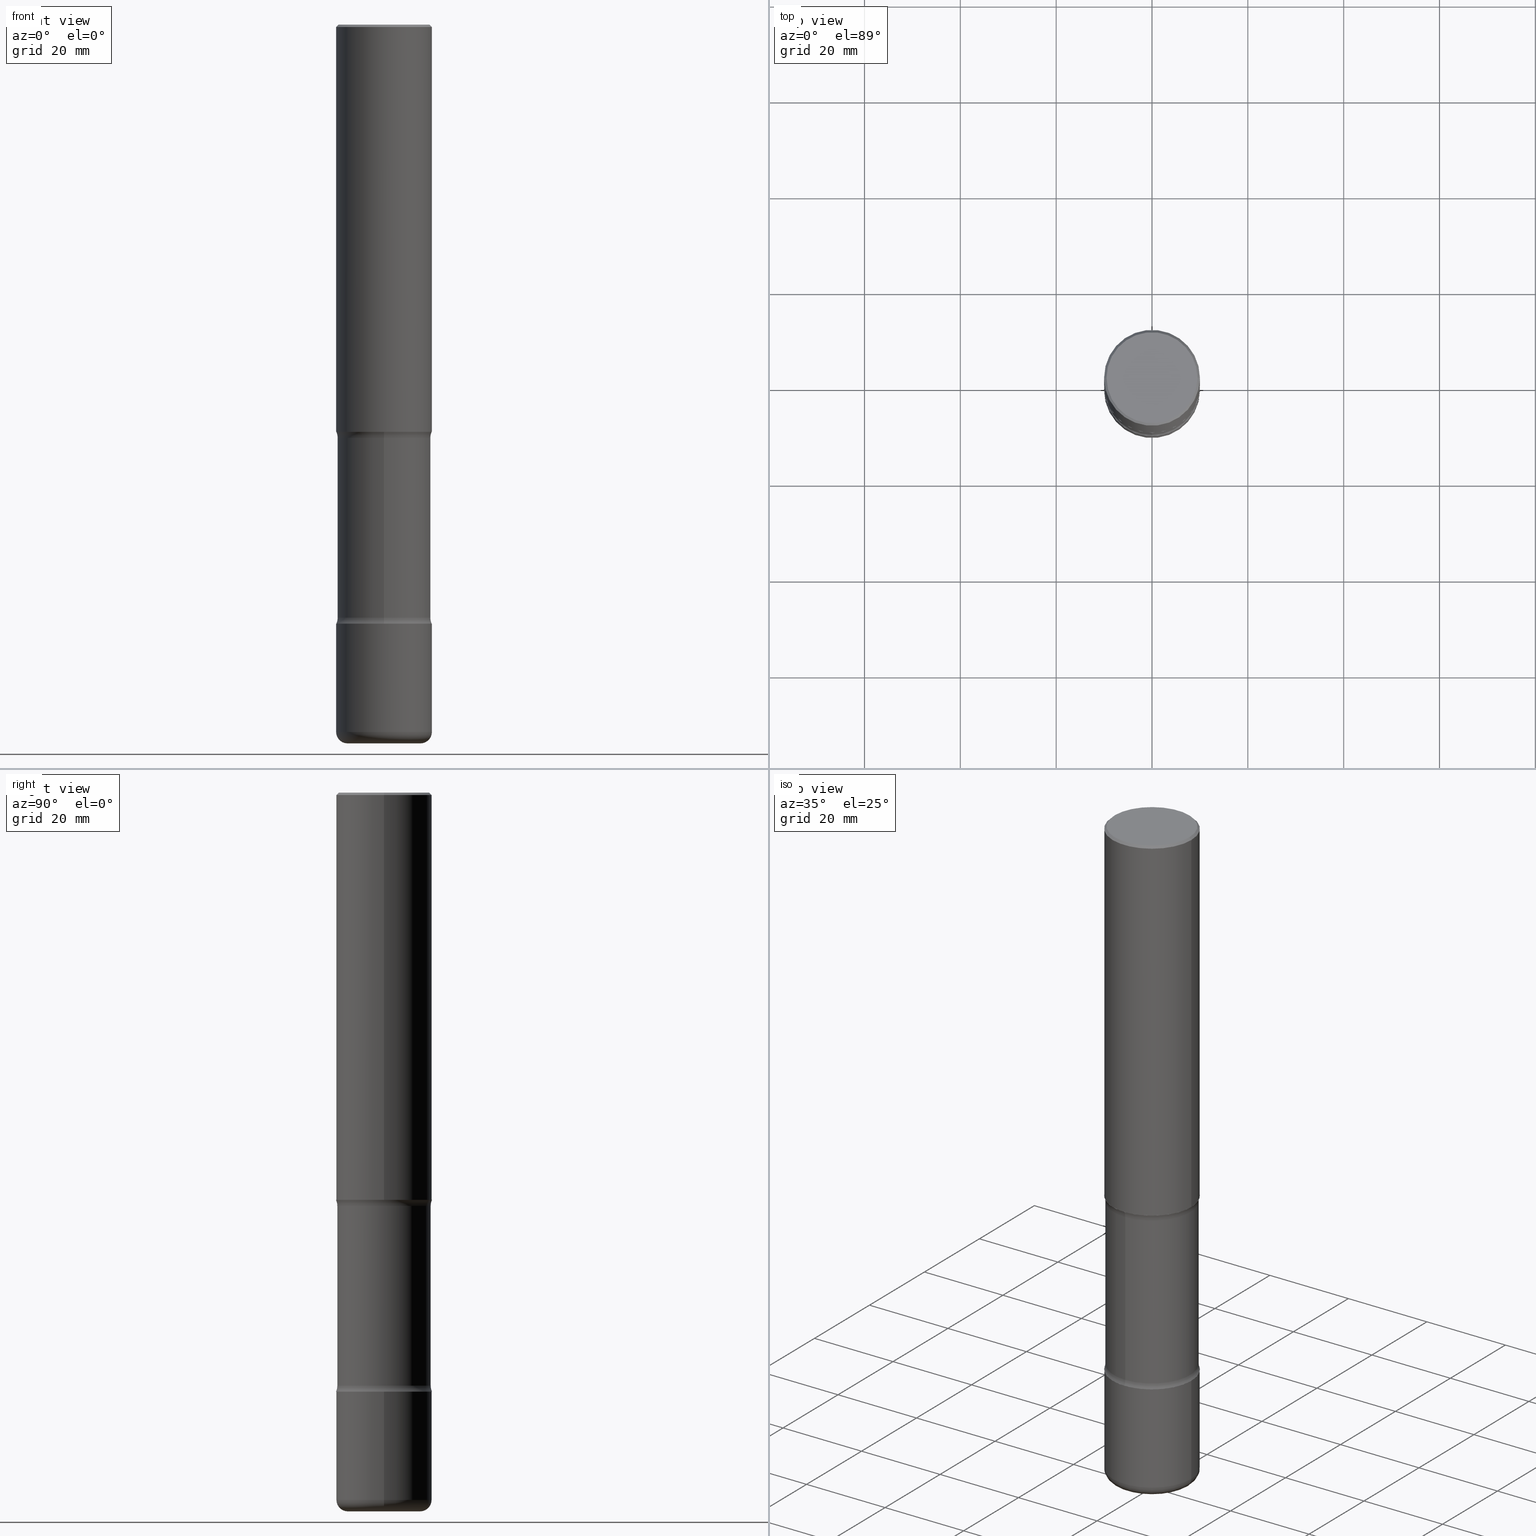
[diagram: canonical four-view strip — front | top / right | iso, engineering-drawing reading convention]
A machine part, canonical four-view strip (front | top / right | iso — engineering-drawing reading convention). The complete STEP part file that produces these views, byte-faithful:
ISO-10303-21;
HEADER;
FILE_DESCRIPTION (( 'STEP AP203' ),
    '1' );
FILE_NAME ('44973.STEP',
    '2024-03-02T04:12:01',
    ( '' ),
    ( '' ),
    'SwSTEP 2.0',
    'SolidWorks 2023',
    '' );
FILE_SCHEMA (( 'CONFIG_CONTROL_DESIGN' ));
ENDSEC;

DATA;
#1 = AXIS2_PLACEMENT_3D ( 'NONE', #275, #523, #135 ) ;
#2 = AXIS2_PLACEMENT_3D ( 'NONE', #64, #502, #440 ) ;
#3 =( GEOMETRIC_REPRESENTATION_CONTEXT ( 3 ) GLOBAL_UNCERTAINTY_ASSIGNED_CONTEXT ( ( #393 ) ) GLOBAL_UNIT_ASSIGNED_CONTEXT ( ( #121, #168, #201 ) ) REPRESENTATION_CONTEXT ( 'NONE', 'WORKASPACE' ) );
#4 = PERSON_AND_ORGANIZATION ( #183, #44 ) ;
#5 = PERSON_AND_ORGANIZATION_ROLE ( 'creator' ) ;
#6 = APPROVAL_STATUS ( 'not_yet_approved' ) ;
#7 = CARTESIAN_POINT ( 'NONE',  ( -0.3937000000000002164, 2.797406750687515970E-15, -1.936584745033357576E-29 ) ) ;
#8 = APPROVAL_ROLE ( '' ) ;
#9 = ORIENTED_EDGE ( 'NONE', *, *, #372, .F. ) ;
#10 = DIRECTION ( 'NONE',  ( -2.445468806185136597E-29, 3.491481338843145583E-15, 1.000000000000000000 ) ) ;
#11 = CIRCLE ( 'NONE', #1, 0.3937000000000002720 ) ;
#12 = AXIS2_PLACEMENT_3D ( 'NONE', #205, #198, #422 ) ;
#13 = AXIS2_PLACEMENT_3D ( 'NONE', #532, #144, #237 ) ;
#14 = PERSON_AND_ORGANIZATION ( #183, #44 ) ;
#15 = DIRECTION ( 'NONE',  ( -6.982962677686265922E-15, -1.000000000000000000, 3.357854558070983727E-15 ) ) ;
#16 = EDGE_CURVE ( 'NONE', #283, #477, #11, .T. ) ;
#17 = DIRECTION ( 'NONE',  ( -2.445468806185136597E-29, 3.491481338843145583E-15, 1.000000000000000000 ) ) ;
#18 = ORIENTED_EDGE ( 'NONE', *, *, #89, .T. ) ;
#19 = VERTEX_POINT ( 'NONE', #378 ) ;
#20 = DIRECTION ( 'NONE',  ( -2.445468806185136597E-29, 3.491481338843145583E-15, 1.000000000000000000 ) ) ;
#21 = ORIENTED_EDGE ( 'NONE', *, *, #490, .F. ) ;
#22 = DIRECTION ( 'NONE',  ( 6.982962677686265133E-15, 1.000000000000000000, -2.775563112689113934E-15 ) ) ;
#23 = AXIS2_PLACEMENT_3D ( 'NONE', #486, #284, #423 ) ;
#24 = CARTESIAN_POINT ( 'NONE',  ( 0.3937000000000001609, -1.993147037091997467E-14, -4.921200000000000685 ) ) ;
#25 = AXIS2_PLACEMENT_3D ( 'NONE', #353, #163, #309 ) ;
#26 = LOCAL_TIME ( 23, 12, 1.000000000000000000, #327 ) ;
#27 = ADVANCED_FACE ( 'NONE', ( #145 ), #290, .T. ) ;
#28 = CC_DESIGN_APPROVAL ( #214, ( #80 ) ) ;
#29 = DIRECTION ( 'NONE',  ( 2.538779888472273425E-29, -3.357854558070984121E-15, -1.000000000000000000 ) ) ;
#30 = CARTESIAN_POINT ( 'NONE',  ( -2.087702828670439639E-46, 2.980686340760894400E-32, 8.537024980200822558E-18 ) ) ;
#31 = CARTESIAN_POINT ( 'NONE',  ( 8.161388557827687771E-29, -1.206145871429503405E-14, -3.395856647682592211 ) ) ;
#32 = CARTESIAN_POINT ( 'NONE',  ( 1.191369639983202937E-28, -1.700960100224938082E-14, -4.871743352317408515 ) ) ;
#33 = FACE_OUTER_BOUND ( 'NONE', #170, .T. ) ;
#34 = CARTESIAN_POINT ( 'NONE',  ( 0.2992000000000003546, -2.270824547970193579E-14, -5.905500000000001748 ) ) ;
#35 = AXIS2_PLACEMENT_3D ( 'NONE', #331, #253, #99 ) ;
#36 = DIRECTION ( 'NONE',  ( -2.445468806185136597E-29, 3.491481338843145583E-15, 1.000000000000000000 ) ) ;
#37 = CARTESIAN_POINT ( 'NONE',  ( -0.3937000000000001054, 2.797406750687515181E-15, -1.936584745033357016E-29 ) ) ;
#38 = PERSON_AND_ORGANIZATION ( #183, #44 ) ;
#39 = VERTEX_POINT ( 'NONE', #533 ) ;
#40 = DIRECTION ( 'NONE',  ( 2.538779888472273425E-29, -3.357854558070984121E-15, -1.000000000000000000 ) ) ;
#41 = MANIFOLD_SOLID_BREP ( 'Body-Move/Copy2[2]', #224 ) ;
#42 = ORIENTED_EDGE ( 'NONE', *, *, #148, .F. ) ;
#43 = AXIS2_PLACEMENT_3D ( 'NONE', #387, #547, #311 ) ;
#44 = ORGANIZATION ( 'UNSPECIFIED', 'UNSPECIFIED', '' ) ;
#45 = FACE_OUTER_BOUND ( 'NONE', #534, .T. ) ;
#46 = ORIENTED_EDGE ( 'NONE', *, *, #190, .F. ) ;
#47 = ORIENTED_EDGE ( 'NONE', *, *, #89, .F. ) ;
#48 = ORIENTED_EDGE ( 'NONE', *, *, #16, .F. ) ;
#49 = EDGE_CURVE ( 'NONE', #527, #19, #455, .T. ) ;
#50 = EDGE_LOOP ( 'NONE', ( #93, #277, #233, #134 ) ) ;
#51 = AXIS2_PLACEMENT_3D ( 'NONE', #298, #40, #206 ) ;
#52 = CC_DESIGN_SECURITY_CLASSIFICATION ( #348, ( #80 ) ) ;
#53 = DIRECTION ( 'NONE',  ( 2.538779888472273425E-29, -3.357854558070984121E-15, -1.000000000000000000 ) ) ;
#54 = EDGE_CURVE ( 'NONE', #383, #520, #234, .T. ) ;
#55 = ORIENTED_EDGE ( 'NONE', *, *, #296, .F. ) ;
#56 = DIRECTION ( 'NONE',  ( 2.438088387897960049E-29, -3.491481338843145188E-15, -1.000000000000000000 ) ) ;
#57 = EDGE_LOOP ( 'NONE', ( #459, #174, #472, #411 ) ) ;
#58 = DIRECTION ( 'NONE',  ( -6.982962677686266711E-15, -1.000000000000000000, 3.491481338843145583E-15 ) ) ;
#59 = PLANE ( 'NONE',  #425 ) ;
#60 = AXIS2_PLACEMENT_3D ( 'NONE', #155, #267, #300 ) ;
#61 = ORIENTED_EDGE ( 'NONE', *, *, #115, .F. ) ;
#62 = CARTESIAN_POINT ( 'NONE',  ( 0.000000000000000000, 0.000000000000000000, 0.000000000000000000 ) ) ;
#63 = ORIENTED_EDGE ( 'NONE', *, *, #123, .T. ) ;
#64 = CARTESIAN_POINT ( 'NONE',  ( -6.191979204648126414E-30, -4.218702904464554477E-14, -5.905500000000000860 ) ) ;
#65 = PLANE ( 'NONE',  #478 ) ;
#66 = SECURITY_CLASSIFICATION_LEVEL ( 'unclassified' ) ;
#67 = CARTESIAN_POINT ( 'NONE',  ( 2.749192406205204307E-15, 0.3936999999999828970, -4.921200000000001573 ) ) ;
#68 = DIRECTION ( 'NONE',  ( -2.445468806185136597E-29, 3.491481338843145583E-15, 1.000000000000000000 ) ) ;
#69 = AXIS2_PLACEMENT_3D ( 'NONE', #525, #53, #324 ) ;
#70 = ORIENTED_EDGE ( 'NONE', *, *, #142, .T. ) ;
#71 = DIRECTION ( 'NONE',  ( 1.000000000000000000, -6.860497997771530774E-15, 4.842435335717673122E-29 ) ) ;
#72 = CYLINDRICAL_SURFACE ( 'NONE', #187, 0.3937000000000002164 ) ;
#73 = PRODUCT ( '44973', '44973', '', ( #149 ) ) ;
#74 = DIRECTION ( 'NONE',  ( 1.000000000000000000, 0.000000000000000000, 0.000000000000000000 ) ) ;
#75 = PERSON_AND_ORGANIZATION_ROLE ( 'classification_officer' ) ;
#76 = ADVANCED_FACE ( 'NONE', ( #498 ), #59, .F. ) ;
#77 = CARTESIAN_POINT ( 'NONE',  ( 3.550836521603549279E-15, 0.5084999999999880727, -3.395856647682593987 ) ) ;
#78 = DIRECTION ( 'NONE',  ( 6.982962677686265133E-15, 1.000000000000000000, -3.357854558070984121E-15 ) ) ;
#79 = AXIS2_PLACEMENT_3D ( 'NONE', #141, #100, #193 ) ;
#80 = PRODUCT_DEFINITION_FORMATION_WITH_SPECIFIED_SOURCE ( 'ANY', '', #73, .NOT_KNOWN. ) ;
#81 = ORIENTED_EDGE ( 'NONE', *, *, #385, .T. ) ;
#82 = DIRECTION ( 'NONE',  ( 6.860497997771527618E-15, 1.000000000000000000, 0.000000000000000000 ) ) ;
#83 = DIRECTION ( 'NONE',  ( 1.000000000000000000, -6.982962677686266711E-15, 0.000000000000000000 ) ) ;
#84 = DATE_AND_TIME ( #90, #474 ) ;
#85 = ORIENTED_EDGE ( 'NONE', *, *, #257, .T. ) ;
#86 = TOROIDAL_SURFACE ( 'NONE', #285, 0.2992000000000003546, 0.09449999999999986189 ) ;
#87 = ORIENTED_EDGE ( 'NONE', *, *, #238, .F. ) ;
#88 = ORIENTED_EDGE ( 'NONE', *, *, #142, .F. ) ;
#89 = EDGE_CURVE ( 'NONE', #437, #231, #557, .T. ) ;
#90 = CALENDAR_DATE ( 2024, 1, 3 ) ;
#91 = PLANE ( 'NONE',  #381 ) ;
#92 = APPROVAL ( #6, 'UNSPECIFIED' ) ;
#93 = ORIENTED_EDGE ( 'NONE', *, *, #173, .F. ) ;
#94 = EDGE_CURVE ( 'NONE', #231, #437, #388, .T. ) ;
#95 = AXIS2_PLACEMENT_3D ( 'NONE', #160, #110, #339 ) ;
#96 = AXIS2_PLACEMENT_3D ( 'NONE', #225, #416, #74 ) ;
#97 = ORIENTED_EDGE ( 'NONE', *, *, #508, .T. ) ;
#98 = PLANE ( 'NONE',  #419 ) ;
#99 = DIRECTION ( 'NONE',  ( 6.982962677686265922E-15, 1.000000000000000000, -2.775563112689115512E-15 ) ) ;
#100 = DIRECTION ( 'NONE',  ( 2.538779888472273425E-29, -3.357854558070984121E-15, -1.000000000000000000 ) ) ;
#101 = CONICAL_SURFACE ( 'NONE', #13, 0.3936999999999999389, 0.7853981633974473908 ) ;
#102 = ADVANCED_FACE ( 'NONE', ( #540 ), #150, .T. ) ;
#103 = PLANE ( 'NONE',  #2 ) ;
#104 = CARTESIAN_POINT ( 'NONE',  ( 1.203464108899829604E-28, -1.718227796471488830E-14, -4.921200000000000685 ) ) ;
#105 = CARTESIAN_POINT ( 'NONE',  ( -2.700978061722573549E-15, -0.3937000000000122624, -3.346399999999999153 ) ) ;
#106 = CARTESIAN_POINT ( 'NONE',  ( 0.2992000000000003546, -2.237830049318126136E-14, -5.811000000000001720 ) ) ;
#107 = PERSON_AND_ORGANIZATION ( #183, #44 ) ;
#108 = DIRECTION ( 'NONE',  ( 1.000000000000000000, -6.982962677686266711E-15, 4.876176775795935793E-29 ) ) ;
#109 = ORIENTED_EDGE ( 'NONE', *, *, #291, .F. ) ;
#110 = DIRECTION ( 'NONE',  ( -2.445468806185136597E-29, 3.491481338843145583E-15, 1.000000000000000000 ) ) ;
#111 = DIRECTION ( 'NONE',  ( 1.000000000000000000, -6.982962677686266711E-15, 4.876212485538976239E-29 ) ) ;
#112 = AXIS2_PLACEMENT_3D ( 'NONE', #30, #531, #200 ) ;
#113 =( LENGTH_UNIT ( ) NAMED_UNIT ( * ) SI_UNIT ( $, .METRE. ) );
#114 = DIRECTION ( 'NONE',  ( -6.982962677686264344E-15, -1.000000000000000000, 0.000000000000000000 ) ) ;
#115 = EDGE_CURVE ( 'NONE', #405, #527, #166, .T. ) ;
#116 = DIRECTION ( 'NONE',  ( 1.000000000000000000, -6.982962677686266711E-15, 0.000000000000000000 ) ) ;
#117 = DIRECTION ( 'NONE',  ( -1.000000000000000000, 6.982962677686265922E-15, -4.876176775795935793E-29 ) ) ;
#118 = CARTESIAN_POINT ( 'NONE',  ( 0.3937000000000002164, -2.303819046622261022E-14, -5.811000000000001720 ) ) ;
#119 = AXIS2_PLACEMENT_3D ( 'NONE', #204, #169, #466 ) ;
#120 = APPROVAL_PERSON_ORGANIZATION ( #4, #92, #182 ) ;
#121 =( CONVERSION_BASED_UNIT ( 'INCH', #434 ) LENGTH_UNIT ( ) NAMED_UNIT ( #217 ) );
#122 = DIRECTION ( 'NONE',  ( -2.445468806185136597E-29, 3.491481338843145583E-15, 1.000000000000000000 ) ) ;
#123 = EDGE_CURVE ( 'NONE', #320, #530, #335, .T. ) ;
#124 = DIRECTION ( 'NONE',  ( 2.538779888472273425E-29, -3.357854558070984121E-15, -1.000000000000000000 ) ) ;
#125 = ORIENTED_EDGE ( 'NONE', *, *, #385, .F. ) ;
#126 = APPROVAL_DATE_TIME ( #84, #392 ) ;
#127 = ADVANCED_FACE ( 'NONE', ( #33 ), #65, .F. ) ;
#128 = AXIS2_PLACEMENT_3D ( 'NONE', #32, #552, #491 ) ;
#129 = ORIENTED_EDGE ( 'NONE', *, *, #158, .F. ) ;
#130 = EDGE_LOOP ( 'NONE', ( #361, #199, #48, #262 ) ) ;
#131 = EDGE_CURVE ( 'NONE', #39, #477, #418, .T. ) ;
#132 = ORIENTED_EDGE ( 'NONE', *, *, #264, .T. ) ;
#133 = DIRECTION ( 'NONE',  ( -2.538779888472273425E-29, 3.357854558070983727E-15, 1.000000000000000000 ) ) ;
#134 = ORIENTED_EDGE ( 'NONE', *, *, #202, .T. ) ;
#135 = DIRECTION ( 'NONE',  ( 1.000000000000000000, -6.982962677686263555E-15, 0.000000000000000000 ) ) ;
#136 = CARTESIAN_POINT ( 'NONE',  ( -2.700978061722531345E-15, -0.3937000000000173139, -4.921199999999999797 ) ) ;
#137 = ORIENTED_EDGE ( 'NONE', *, *, #164, .F. ) ;
#138 = CIRCLE ( 'NONE', #480, 0.1250000000000001110 ) ;
#139 = ORIENTED_EDGE ( 'NONE', *, *, #49, .T. ) ;
#140 = DIRECTION ( 'NONE',  ( 1.000000000000000000, -6.982962677686266711E-15, 0.000000000000000000 ) ) ;
#141 = CARTESIAN_POINT ( 'NONE',  ( 1.190908154651047396E-28, -1.701620973486698988E-14, -4.871743352317408515 ) ) ;
#142 = EDGE_CURVE ( 'NONE', #292, #19, #207, .T. ) ;
#143 = APPLICATION_CONTEXT ( 'configuration controlled 3d designs of mechanical parts and assemblies' ) ;
#144 = DIRECTION ( 'NONE',  ( 2.445468806185136597E-29, -3.491481338843145583E-15, -1.000000000000000000 ) ) ;
#145 = FACE_OUTER_BOUND ( 'NONE', #542, .T. ) ;
#146 = VECTOR ( 'NONE', #358, 39.37007874015748143 ) ;
#147 = EDGE_LOOP ( 'NONE', ( #220, #443, #511, #519 ) ) ;
#148 = EDGE_CURVE ( 'NONE', #475, #292, #138, .T. ) ;
#149 = MECHANICAL_CONTEXT ( 'NONE', #143, 'mechanical' ) ;
#150 = CYLINDRICAL_SURFACE ( 'NONE', #304, 0.3937000000000001054 ) ;
#151 = FACE_OUTER_BOUND ( 'NONE', #431, .T. ) ;
#152 = EDGE_LOOP ( 'NONE', ( #42, #109, #452, #408 ) ) ;
#153 = DIRECTION ( 'NONE',  ( -2.445468806185136597E-29, 3.491481338843145583E-15, 1.000000000000000000 ) ) ;
#154 = EDGE_CURVE ( 'NONE', #530, #320, #412, .T. ) ;
#155 = CARTESIAN_POINT ( 'NONE',  ( 1.203464108899829604E-28, -1.718227796471488830E-14, -4.921200000000000685 ) ) ;
#156 = CARTESIAN_POINT ( 'NONE',  ( -3.488563231866742935E-15, -0.5085000000000122755, -3.395856647682590435 ) ) ;
#157 = VECTOR ( 'NONE', #340, 39.37007874015748143 ) ;
#158 = EDGE_CURVE ( 'NONE', #39, #219, #249, .T. ) ;
#159 = CIRCLE ( 'NONE', #473, 0.1250000000000001110 ) ;
#160 = CARTESIAN_POINT ( 'NONE',  ( 8.183516813017942119E-29, -1.168389315230470294E-14, -3.346400000000000041 ) ) ;
#161 = DIRECTION ( 'NONE',  ( 0.7071067811865469066, -7.319954787623254468E-15, -0.7071067811865481278 ) ) ;
#162 = DATE_AND_TIME ( #255, #501 ) ;
#163 = DIRECTION ( 'NONE',  ( 2.538779888472273425E-29, -3.357854558070984121E-15, -1.000000000000000000 ) ) ;
#164 = EDGE_CURVE ( 'NONE', #475, #400, #538, .T. ) ;
#165 = CARTESIAN_POINT ( 'NONE',  ( 1.191369639983202937E-28, -1.700960100224938082E-14, -4.871743352317408515 ) ) ;
#166 = CIRCLE ( 'NONE', #23, 0.3835000000000000631 ) ;
#167 = CIRCLE ( 'NONE', #226, 0.1250000000000001110 ) ;
#168 =( NAMED_UNIT ( * ) PLANE_ANGLE_UNIT ( ) SI_UNIT ( $, .RADIAN. ) );
#169 = DIRECTION ( 'NONE',  ( 2.445468806185136597E-29, -3.491481338843145583E-15, -1.000000000000000000 ) ) ;
#170 = EDGE_LOOP ( 'NONE', ( #125, #9 ) ) ;
#171 = CARTESIAN_POINT ( 'NONE',  ( 0.3937000000000001054, -2.749192406205084005E-15, 1.919750796630860452E-29 ) ) ;
#172 = ADVANCED_FACE ( 'NONE', ( #450 ), #240, .T. ) ;
#173 = EDGE_CURVE ( 'NONE', #530, #512, #375, .T. ) ;
#174 = ORIENTED_EDGE ( 'NONE', *, *, #173, .T. ) ;
#175 = AXIS2_PLACEMENT_3D ( 'NONE', #287, #417, #22 ) ;
#176 = CIRCLE ( 'NONE', #488, 0.3937000000000001609 ) ;
#177 = CIRCLE ( 'NONE', #227, 0.09449999999999987577 ) ;
#178 = ORIENTED_EDGE ( 'NONE', *, *, #221, .F. ) ;
#179 = CARTESIAN_POINT ( 'NONE',  ( 4.890937612370294178E-31, -6.982962677686321191E-17, -0.02000000000000008715 ) ) ;
#180 = ORIENTED_EDGE ( 'NONE', *, *, #558, .T. ) ;
#181 = ADVANCED_FACE ( 'NONE', ( #266 ), #380, .F. ) ;
#182 = APPROVAL_ROLE ( '' ) ;
#183 = PERSON ( 'UNSPECIFIED', 'UNSPECIFIED', 'UNSPECIFIED', ('UNSPECIFIED'), ('UNSPECIFIED'), ('UNSPECIFIED') ) ;
#184 = DATE_AND_TIME ( #446, #26 ) ;
#185 = EDGE_LOOP ( 'NONE', ( #63, #556 ) ) ;
#186 = VECTOR ( 'NONE', #161, 39.37007874015748143 ) ;
#187 = AXIS2_PLACEMENT_3D ( 'NONE', #493, #342, #299 ) ;
#188 = DIRECTION ( 'NONE',  ( -2.445468806185136597E-29, 3.491481338843145583E-15, 1.000000000000000000 ) ) ;
#189 = DIRECTION ( 'NONE',  ( 1.000000000000000000, -6.982962677686266711E-15, 4.876176775795935793E-29 ) ) ;
#190 = EDGE_CURVE ( 'NONE', #527, #231, #159, .T. ) ;
#191 = ORIENTED_EDGE ( 'NONE', *, *, #261, .F. ) ;
#192 = ORIENTED_EDGE ( 'NONE', *, *, #190, .T. ) ;
#193 = DIRECTION ( 'NONE',  ( 6.982962677686265922E-15, 1.000000000000000000, -2.849385130288670661E-15 ) ) ;
#194 = EDGE_LOOP ( 'NONE', ( #81, #132, #274, #470 ) ) ;
#195 = AXIS2_PLACEMENT_3D ( 'NONE', #165, #124, #78 ) ;
#196 = DIRECTION ( 'NONE',  ( 6.982962677686265133E-15, 1.000000000000000000, -2.775563112689113934E-15 ) ) ;
#197 = CIRCLE ( 'NONE', #407, 0.3936999999999999389 ) ;
#198 = DIRECTION ( 'NONE',  ( 2.538779888472273425E-29, -3.357854558070984121E-15, -1.000000000000000000 ) ) ;
#199 = ORIENTED_EDGE ( 'NONE', *, *, #131, .T. ) ;
#200 = DIRECTION ( 'NONE',  ( 1.000000000000000000, -6.982962677686266711E-15, 4.876212485538976239E-29 ) ) ;
#201 =( NAMED_UNIT ( * ) SI_UNIT ( $, .STERADIAN. ) SOLID_ANGLE_UNIT ( ) );
#202 = EDGE_CURVE ( 'NONE', #376, #512, #197, .T. ) ;
#203 = CARTESIAN_POINT ( 'NONE',  ( -2.665989521933937322E-15, -0.3835000000000121645, -3.395856647682591323 ) ) ;
#204 = CARTESIAN_POINT ( 'NONE',  ( 4.890937612370294178E-31, -6.982962677686321191E-17, -0.02000000000000008715 ) ) ;
#205 = CARTESIAN_POINT ( 'NONE',  ( 8.161388557827687771E-29, -1.206145871429503405E-14, -3.395856647682592211 ) ) ;
#206 = DIRECTION ( 'NONE',  ( 6.982962677686265922E-15, 1.000000000000000000, -2.849385130288670267E-15 ) ) ;
#207 = CIRCLE ( 'NONE', #79, 0.3835000000000000075 ) ;
#208 = CC_DESIGN_PERSON_AND_ORGANIZATION_ASSIGNMENT ( #362, #75, ( #348 ) ) ;
#209 = DIRECTION ( 'NONE',  ( 1.000000000000000000, -6.982962677686264344E-15, 4.883557194083112340E-29 ) ) ;
#210 = ADVANCED_FACE ( 'NONE', ( #211 ), #507, .T. ) ;
#211 = FACE_OUTER_BOUND ( 'NONE', #57, .T. ) ;
#212 = PRODUCT_DEFINITION ( 'UNKNOWN', '', #80, #432 ) ;
#213 = DIRECTION ( 'NONE',  ( -2.445468806185136597E-29, 3.491481338843145583E-15, 1.000000000000000000 ) ) ;
#214 = APPROVAL ( #409, 'UNSPECIFIED' ) ;
#215 = DIRECTION ( 'NONE',  ( 6.982962677686265922E-15, 1.000000000000000000, -2.849385130288670661E-15 ) ) ;
#216 = ORIENTED_EDGE ( 'NONE', *, *, #558, .F. ) ;
#217 = DIMENSIONAL_EXPONENTS ( 1.000000000000000000, 0.000000000000000000, 0.000000000000000000, 0.000000000000000000, 0.000000000000000000, 0.000000000000000000, 0.000000000000000000 ) ;
#218 = CARTESIAN_POINT ( 'NONE',  ( -0.3937000000000002720, -3.079454638853263992E-15, -3.346400000000000041 ) ) ;
#219 = VERTEX_POINT ( 'NONE', #34 ) ;
#220 = ORIENTED_EDGE ( 'NONE', *, *, #264, .F. ) ;
#221 = EDGE_CURVE ( 'NONE', #19, #292, #549, .T. ) ;
#222 = CARTESIAN_POINT ( 'NONE',  ( -0.3937000000000002164, -1.749159130933001301E-14, -5.811000000000001720 ) ) ;
#223 = VERTEX_POINT ( 'NONE', #260 ) ;
#224 = CLOSED_SHELL ( 'NONE', ( #172, #210, #517, #454, #127, #102 ) ) ;
#225 = CARTESIAN_POINT ( 'NONE',  ( 0.000000000000000000, 0.000000000000000000, 0.000000000000000000 ) ) ;
#226 = AXIS2_PLACEMENT_3D ( 'NONE', #232, #367, #374 ) ;
#227 = AXIS2_PLACEMENT_3D ( 'NONE', #106, #58, #330 ) ;
#228 = EDGE_CURVE ( 'NONE', #527, #405, #346, .T. ) ;
#229 = MANIFOLD_SOLID_BREP ( 'Body-Move/Copy2[4]', #464 ) ;
#230 = CYLINDRICAL_SURFACE ( 'NONE', #69, 0.3835000000000000075 ) ;
#231 = VERTEX_POINT ( 'NONE', #510 ) ;
#232 = CARTESIAN_POINT ( 'NONE',  ( 3.550836521603587144E-15, 0.5084999999999831877, -4.871743352317410292 ) ) ;
#233 = ORIENTED_EDGE ( 'NONE', *, *, #301, .T. ) ;
#234 = CIRCLE ( 'NONE', #506, 0.3937000000000001609 ) ;
#235 = PERSON_AND_ORGANIZATION_ROLE ( 'design_supplier' ) ;
#236 = AXIS2_PLACEMENT_3D ( 'NONE', #394, #424, #303 ) ;
#237 = DIRECTION ( 'NONE',  ( -1.000000000000000000, 6.982962677686266711E-15, 0.000000000000000000 ) ) ;
#238 = EDGE_CURVE ( 'NONE', #219, #39, #305, .T. ) ;
#239 = VECTOR ( 'NONE', #544, 39.37007874015748143 ) ;
#240 = CYLINDRICAL_SURFACE ( 'NONE', #442, 0.3937000000000001054 ) ;
#241 = ORIENTED_EDGE ( 'NONE', *, *, #49, .F. ) ;
#242 = ORIENTED_EDGE ( 'NONE', *, *, #158, .T. ) ;
#243 = ADVANCED_FACE ( 'NONE', ( #302 ), #513, .T. ) ;
#244 = DIRECTION ( 'NONE',  ( -2.438088387897960049E-29, 3.491481338843145188E-15, 1.000000000000000000 ) ) ;
#245 = CC_DESIGN_PERSON_AND_ORGANIZATION_ASSIGNMENT ( #483, #345, ( #80 ) ) ;
#246 = FACE_OUTER_BOUND ( 'NONE', #50, .T. ) ;
#247 = CARTESIAN_POINT ( 'NONE',  ( -0.2992000000000003546, -1.816305419462330473E-14, -5.811000000000001720 ) ) ;
#248 = AXIS2_PLACEMENT_3D ( 'NONE', #247, #344, #250 ) ;
#249 = CIRCLE ( 'NONE', #399, 0.2992000000000003546 ) ;
#250 = DIRECTION ( 'NONE',  ( -1.000000000000000000, 7.105427357600993181E-15, 0.000000000000000000 ) ) ;
#251 = APPROVAL_PERSON_ORGANIZATION ( #541, #214, #8 ) ;
#252 = ORIENTED_EDGE ( 'NONE', *, *, #296, .T. ) ;
#253 = DIRECTION ( 'NONE',  ( 2.538779888472273425E-29, -3.357854558070984121E-15, -1.000000000000000000 ) ) ;
#254 = CARTESIAN_POINT ( 'NONE',  ( 1.444171603492632719E-28, -2.061894304653820143E-14, -5.905500000000001748 ) ) ;
#255 = CALENDAR_DATE ( 2024, 1, 3 ) ;
#256 = DIRECTION ( 'NONE',  ( -2.445468806185136877E-29, 3.491481338843145188E-15, 1.000000000000000000 ) ) ;
#257 = EDGE_CURVE ( 'NONE', #405, #292, #428, .T. ) ;
#258 = CIRCLE ( 'NONE', #354, 0.3937000000000002164 ) ;
#259 = APPROVAL_DATE_TIME ( #162, #214 ) ;
#260 = CARTESIAN_POINT ( 'NONE',  ( 0.3937000000000002164, -1.443308555850978615E-14, -3.346400000000000041 ) ) ;
#261 = EDGE_CURVE ( 'NONE', #477, #283, #280, .T. ) ;
#262 = ORIENTED_EDGE ( 'NONE', *, *, #508, .F. ) ;
#263 = CARTESIAN_POINT ( 'NONE',  ( -0.3936999999999999389, 2.679362779428219524E-15, -0.02000000000000008715 ) ) ;
#264 = EDGE_CURVE ( 'NONE', #316, #376, #390, .T. ) ;
#265 = EDGE_LOOP ( 'NONE', ( #343, #322, #139, #88 ) ) ;
#266 = FACE_OUTER_BOUND ( 'NONE', #152, .T. ) ;
#267 = DIRECTION ( 'NONE',  ( 2.438088387897960049E-29, -3.491481338843145188E-15, -1.000000000000000000 ) ) ;
#268 = AXIS2_PLACEMENT_3D ( 'NONE', #156, #468, #82 ) ;
#269 = CC_DESIGN_APPROVAL ( #392, ( #348 ) ) ;
#270 = ORIENTED_EDGE ( 'NONE', *, *, #291, .T. ) ;
#271 = ADVANCED_FACE ( 'NONE', ( #555 ), #518, .T. ) ;
#272 = CALENDAR_DATE ( 2024, 1, 3 ) ;
#273 = CARTESIAN_POINT ( 'NONE',  ( -0.3936999999999999389, 2.679362779428219524E-15, -0.02000000000000008715 ) ) ;
#274 = ORIENTED_EDGE ( 'NONE', *, *, #430, .F. ) ;
#275 = CARTESIAN_POINT ( 'NONE',  ( 1.421061923274183479E-28, -2.028899806001752700E-14, -5.811000000000001720 ) ) ;
#276 = CARTESIAN_POINT ( 'NONE',  ( 1.203464108899829604E-28, -1.718227796471488830E-14, -4.921200000000000685 ) ) ;
#277 = ORIENTED_EDGE ( 'NONE', *, *, #123, .F. ) ;
#278 = ADVANCED_FACE ( 'NONE', ( #503 ), #86, .T. ) ;
#279 = DIRECTION ( 'NONE',  ( 1.000000000000000000, -6.982962677686265922E-15, 0.000000000000000000 ) ) ;
#280 = CIRCLE ( 'NONE', #43, 0.3937000000000002720 ) ;
#281 = TOROIDAL_SURFACE ( 'NONE', #489, 0.5085000000000001741, 0.1250000000000000555 ) ;
#282 = CC_DESIGN_PERSON_AND_ORGANIZATION_ASSIGNMENT ( #107, #318, ( #73 ) ) ;
#283 = VERTEX_POINT ( 'NONE', #118 ) ;
#284 = DIRECTION ( 'NONE',  ( 2.538779888472273425E-29, -3.357854558070984121E-15, -1.000000000000000000 ) ) ;
#285 = AXIS2_PLACEMENT_3D ( 'NONE', #435, #36, #391 ) ;
#286 = EDGE_LOOP ( 'NONE', ( #55, #485, #192, #333 ) ) ;
#287 = CARTESIAN_POINT ( 'NONE',  ( 8.036570520632159222E-29, -1.189432860666470280E-14, -3.346400000000000041 ) ) ;
#288 = EDGE_LOOP ( 'NONE', ( #137, #325, #70, #366 ) ) ;
#289 = DIRECTION ( 'NONE',  ( 6.982962677686265922E-15, 1.000000000000000000, -3.357854558070983727E-15 ) ) ;
#290 = CYLINDRICAL_SURFACE ( 'NONE', #314, 0.3835000000000000075 ) ;
#291 = EDGE_CURVE ( 'NONE', #400, #475, #360, .T. ) ;
#292 = VERTEX_POINT ( 'NONE', #471 ) ;
#293 = VECTOR ( 'NONE', #463, 39.37007874015748143 ) ;
#294 = CARTESIAN_POINT ( 'NONE',  ( 8.183516813017942119E-29, -1.168389315230470294E-14, -3.346400000000000041 ) ) ;
#295 = CALENDAR_DATE ( 2024, 1, 3 ) ;
#296 = EDGE_CURVE ( 'NONE', #405, #437, #426, .T. ) ;
#297 = PERSON_AND_ORGANIZATION ( #183, #44 ) ;
#298 = CARTESIAN_POINT ( 'NONE',  ( 8.162130063119982422E-29, -1.206039683651260596E-14, -3.395856647682592211 ) ) ;
#299 = DIRECTION ( 'NONE',  ( 1.000000000000000000, -6.982962677686266711E-15, 4.876176775795935793E-29 ) ) ;
#300 = DIRECTION ( 'NONE',  ( -1.000000000000000000, 6.982962677686265922E-15, -4.876176775795935793E-29 ) ) ;
#301 = EDGE_CURVE ( 'NONE', #320, #376, #347, .T. ) ;
#302 = FACE_OUTER_BOUND ( 'NONE', #363, .T. ) ;
#303 = DIRECTION ( 'NONE',  ( 1.000000000000000000, -6.982962677686266711E-15, 4.876176775795935793E-29 ) ) ;
#304 = AXIS2_PLACEMENT_3D ( 'NONE', #62, #460, #108 ) ;
#305 = CIRCLE ( 'NONE', #509, 0.2992000000000003546 ) ;
#306 = COORDINATED_UNIVERSAL_TIME_OFFSET ( 5, 0, .BEHIND. ) ;
#307 = LOCAL_TIME ( 23, 12, 1.000000000000000000, #526 ) ;
#308 = ORIENTED_EDGE ( 'NONE', *, *, #261, .T. ) ;
#309 = DIRECTION ( 'NONE',  ( 6.982962677686265922E-15, 1.000000000000000000, -2.775563112689115512E-15 ) ) ;
#310 = FACE_OUTER_BOUND ( 'NONE', #377, .T. ) ;
#311 = DIRECTION ( 'NONE',  ( 1.000000000000000000, -6.982962677686263555E-15, 0.000000000000000000 ) ) ;
#312 = APPLICATION_PROTOCOL_DEFINITION ( 'international standard', 'config_control_design', 1994, #482 ) ;
#313 = EDGE_LOOP ( 'NONE', ( #87, #129 ) ) ;
#314 = AXIS2_PLACEMENT_3D ( 'NONE', #484, #382, #492 ) ;
#315 = TOROIDAL_SURFACE ( 'NONE', #12, 0.5085000000000001741, 0.1250000000000000555 ) ;
#316 = VERTEX_POINT ( 'NONE', #218 ) ;
#317 = CC_DESIGN_PERSON_AND_ORGANIZATION_ASSIGNMENT ( #297, #235, ( #80 ) ) ;
#318 = PERSON_AND_ORGANIZATION_ROLE ( 'design_owner' ) ;
#319 = FACE_OUTER_BOUND ( 'NONE', #396, .T. ) ;
#320 = VERTEX_POINT ( 'NONE', #401 ) ;
#321 = EDGE_CURVE ( 'NONE', #223, #512, #560, .T. ) ;
#322 = ORIENTED_EDGE ( 'NONE', *, *, #115, .T. ) ;
#323 = ADVANCED_FACE ( 'NONE', ( #45 ), #315, .F. ) ;
#324 = DIRECTION ( 'NONE',  ( 6.982962677686265922E-15, 1.000000000000000000, -2.849385130288670661E-15 ) ) ;
#325 = ORIENTED_EDGE ( 'NONE', *, *, #148, .T. ) ;
#326 = VECTOR ( 'NONE', #521, 39.37007874015748143 ) ;
#327 = COORDINATED_UNIVERSAL_TIME_OFFSET ( 5, 0, .BEHIND. ) ;
#328 = PRODUCT_DEFINITION_SHAPE ( 'NONE', 'NONE',  #212 ) ;
#329 = FACE_OUTER_BOUND ( 'NONE', #185, .T. ) ;
#330 = DIRECTION ( 'NONE',  ( 1.000000000000000000, -6.982962677686254878E-15, 0.000000000000000000 ) ) ;
#331 = CARTESIAN_POINT ( 'NONE',  ( 1.203464108899829604E-28, -1.718227796471488830E-14, -4.921200000000000685 ) ) ;
#332 = COORDINATED_UNIVERSAL_TIME_OFFSET ( 5, 0, .BEHIND. ) ;
#333 = ORIENTED_EDGE ( 'NONE', *, *, #94, .T. ) ;
#334 = CARTESIAN_POINT ( 'NONE',  ( 2.677966186892827866E-15, 0.3834999999999795239, -5.905500000000001748 ) ) ;
#335 = CIRCLE ( 'NONE', #441, 0.3736999999999999211 ) ;
#336 = AXIS2_PLACEMENT_3D ( 'NONE', #179, #10, #371 ) ;
#337 = CC_DESIGN_APPROVAL ( #92, ( #212 ) ) ;
#338 = CC_DESIGN_DATE_AND_TIME_ASSIGNMENT ( #429, #403, ( #348 ) ) ;
#339 = DIRECTION ( 'NONE',  ( 1.000000000000000000, -6.982962677686265133E-15, 0.000000000000000000 ) ) ;
#340 = DIRECTION ( 'NONE',  ( 2.538779888472273425E-29, -3.357854558070983727E-15, -1.000000000000000000 ) ) ;
#341 = DIRECTION ( 'NONE',  ( 2.538779888472273425E-29, -3.357854558070983727E-15, -1.000000000000000000 ) ) ;
#342 = DIRECTION ( 'NONE',  ( -2.445468806185136597E-29, 3.491481338843145583E-15, 1.000000000000000000 ) ) ;
#343 = ORIENTED_EDGE ( 'NONE', *, *, #257, .F. ) ;
#344 = DIRECTION ( 'NONE',  ( 7.105427357601001859E-15, 1.000000000000000000, -3.491481338843145583E-15 ) ) ;
#345 = PERSON_AND_ORGANIZATION_ROLE ( 'creator' ) ;
#346 = CIRCLE ( 'NONE', #51, 0.3835000000000000631 ) ;
#347 = LINE ( 'NONE', #263, #436 ) ;
#348 = SECURITY_CLASSIFICATION ( '', '', #66 ) ;
#349 = ADVANCED_BREP_SHAPE_REPRESENTATION ( '44973', ( #421, #41, #229, #96 ), #3 ) ;
#350 = DIRECTION ( 'NONE',  ( -1.000000000000000000, 6.982962677686265922E-15, -4.883557194083112340E-29 ) ) ;
#351 = CARTESIAN_POINT ( 'NONE',  ( 0.3937000000000002164, -2.749192406205084794E-15, 1.919750796630861012E-29 ) ) ;
#352 = CARTESIAN_POINT ( 'NONE',  ( 1.421061923274183479E-28, -2.028899806001752700E-14, -5.811000000000001720 ) ) ;
#353 = CARTESIAN_POINT ( 'NONE',  ( 1.203464108899829604E-28, -1.718227796471488830E-14, -4.921200000000000685 ) ) ;
#354 = AXIS2_PLACEMENT_3D ( 'NONE', #410, #188, #516 ) ;
#355 = APPROVAL_PERSON_ORGANIZATION ( #38, #392, #514 ) ;
#356 = CARTESIAN_POINT ( 'NONE',  ( 4.890937612370294178E-31, -6.982962677686321191E-17, -0.02000000000000008715 ) ) ;
#357 = ADVANCED_FACE ( 'NONE', ( #310 ), #546, .F. ) ;
#358 = DIRECTION ( 'NONE',  ( -2.445468806185136877E-29, 3.491481338843145188E-15, 1.000000000000000000 ) ) ;
#359 = COORDINATED_UNIVERSAL_TIME_OFFSET ( 5, 0, .BEHIND. ) ;
#360 = CIRCLE ( 'NONE', #25, 0.3937000000000001609 ) ;
#361 = ORIENTED_EDGE ( 'NONE', *, *, #238, .T. ) ;
#362 = PERSON_AND_ORGANIZATION ( #183, #44 ) ;
#363 = EDGE_LOOP ( 'NONE', ( #402, #379, #497, #216 ) ) ;
#364 = ORIENTED_EDGE ( 'NONE', *, *, #228, .T. ) ;
#365 = EDGE_CURVE ( 'NONE', #520, #383, #176, .T. ) ;
#366 = ORIENTED_EDGE ( 'NONE', *, *, #461, .F. ) ;
#367 = DIRECTION ( 'NONE',  ( -1.000000000000000000, 6.982962677686265922E-15, -4.883557194083112340E-29 ) ) ;
#368 = ORIENTED_EDGE ( 'NONE', *, *, #164, .T. ) ;
#369 = EDGE_LOOP ( 'NONE', ( #487, #47 ) ) ;
#370 = VECTOR ( 'NONE', #256, 39.37007874015748143 ) ;
#371 = DIRECTION ( 'NONE',  ( 1.000000000000000000, -6.982962677686266711E-15, 0.000000000000000000 ) ) ;
#372 = EDGE_CURVE ( 'NONE', #316, #223, #258, .T. ) ;
#373 = DIRECTION ( 'NONE',  ( 6.860497997771531562E-15, 1.000000000000000000, 0.000000000000000000 ) ) ;
#374 = DIRECTION ( 'NONE',  ( -6.982962677686264344E-15, -1.000000000000000000, 0.000000000000000000 ) ) ;
#375 = LINE ( 'NONE', #550, #186 ) ;
#376 = VERTEX_POINT ( 'NONE', #273 ) ;
#377 = EDGE_LOOP ( 'NONE', ( #447, #476 ) ) ;
#378 = CARTESIAN_POINT ( 'NONE',  ( 2.677966186892801834E-15, 0.3834999999999830211, -4.871743352317410292 ) ) ;
#379 = ORIENTED_EDGE ( 'NONE', *, *, #490, .T. ) ;
#380 = TOROIDAL_SURFACE ( 'NONE', #195, 0.5085000000000001741, 0.1250000000000001110 ) ;
#381 = AXIS2_PLACEMENT_3D ( 'NONE', #276, #133, #15 ) ;
#382 = DIRECTION ( 'NONE',  ( 2.538779888472273425E-29, -3.357854558070984121E-15, -1.000000000000000000 ) ) ;
#383 = VERTEX_POINT ( 'NONE', #427 ) ;
#384 = FACE_OUTER_BOUND ( 'NONE', #286, .T. ) ;
#385 = EDGE_CURVE ( 'NONE', #223, #316, #500, .T. ) ;
#386 = CARTESIAN_POINT ( 'NONE',  ( 1.444171603492632719E-28, -2.061894304653820143E-14, -5.905500000000001748 ) ) ;
#387 = CARTESIAN_POINT ( 'NONE',  ( 1.421061923274183479E-28, -2.028899806001752700E-14, -5.811000000000001720 ) ) ;
#388 = CIRCLE ( 'NONE', #175, 0.3937000000000003830 ) ;
#389 = TOROIDAL_SURFACE ( 'NONE', #128, 0.5085000000000001741, 0.1250000000000001110 ) ;
#390 = LINE ( 'NONE', #37, #370 ) ;
#391 = DIRECTION ( 'NONE',  ( 1.000000000000000000, -6.982962677686264344E-15, 4.883557194083112340E-29 ) ) ;
#392 = APPROVAL ( #438, 'UNSPECIFIED' ) ;
#393 = UNCERTAINTY_MEASURE_WITH_UNIT (LENGTH_MEASURE( 1.000000000000000082E-05 ), #121, 'distance_accuracy_value', 'NONE');
#394 = CARTESIAN_POINT ( 'NONE',  ( 0.000000000000000000, 0.000000000000000000, 0.000000000000000000 ) ) ;
#395 = SHAPE_DEFINITION_REPRESENTATION ( #328, #349 ) ;
#396 = EDGE_LOOP ( 'NONE', ( #270, #368 ) ) ;
#397 = ADVANCED_FACE ( 'NONE', ( #457 ), #389, .F. ) ;
#398 = CARTESIAN_POINT ( 'NONE',  ( -2.631000982145236803E-15, -0.3835000000000204912, -5.905499999999999972 ) ) ;
#399 = AXIS2_PLACEMENT_3D ( 'NONE', #386, #153, #140 ) ;
#400 = VERTEX_POINT ( 'NONE', #67 ) ;
#401 = CARTESIAN_POINT ( 'NONE',  ( -0.3736999999999999211, 2.644447966039788269E-15, 8.537024980182450727E-18 ) ) ;
#402 = ORIENTED_EDGE ( 'NONE', *, *, #16, .T. ) ;
#403 = DATE_TIME_ROLE ( 'classification_date' ) ;
#404 = LINE ( 'NONE', #7, #326 ) ;
#405 = VERTEX_POINT ( 'NONE', #203 ) ;
#406 = ADVANCED_FACE ( 'NONE', ( #494 ), #103, .T. ) ;
#407 = AXIS2_PLACEMENT_3D ( 'NONE', #356, #462, #83 ) ;
#408 = ORIENTED_EDGE ( 'NONE', *, *, #221, .T. ) ;
#409 = APPROVAL_STATUS ( 'not_yet_approved' ) ;
#410 = CARTESIAN_POINT ( 'NONE',  ( 8.183516813017942119E-29, -1.168389315230470294E-14, -3.346400000000000041 ) ) ;
#411 = ORIENTED_EDGE ( 'NONE', *, *, #301, .F. ) ;
#412 = CIRCLE ( 'NONE', #112, 0.3736999999999999211 ) ;
#413 = CARTESIAN_POINT ( 'NONE',  ( 0.000000000000000000, 0.000000000000000000, 0.000000000000000000 ) ) ;
#414 = CARTESIAN_POINT ( 'NONE',  ( 2.677966186892764757E-15, 0.3834999999999880171, -3.395856647682593543 ) ) ;
#415 = DIRECTION ( 'NONE',  ( 2.538779888472273425E-29, -3.357854558070984121E-15, -1.000000000000000000 ) ) ;
#416 = DIRECTION ( 'NONE',  ( 0.000000000000000000, 0.000000000000000000, 1.000000000000000000 ) ) ;
#417 = DIRECTION ( 'NONE',  ( 2.538779888472273425E-29, -3.357854558070984121E-15, -1.000000000000000000 ) ) ;
#418 = CIRCLE ( 'NONE', #248, 0.09449999999999987577 ) ;
#419 = AXIS2_PLACEMENT_3D ( 'NONE', #479, #56, #117 ) ;
#420 = CARTESIAN_POINT ( 'NONE',  ( -3.488563231866705464E-15, -0.5085000000000171605, -4.871743352317407627 ) ) ;
#421 = MANIFOLD_SOLID_BREP ( 'Body-Move/Copy2[1]', #548 ) ;
#422 = DIRECTION ( 'NONE',  ( 6.982962677686265133E-15, 1.000000000000000000, -3.357854558070984121E-15 ) ) ;
#423 = DIRECTION ( 'NONE',  ( 6.982962677686265922E-15, 1.000000000000000000, -2.849385130288670267E-15 ) ) ;
#424 = DIRECTION ( 'NONE',  ( -2.445468806185136597E-29, 3.491481338843145583E-15, 1.000000000000000000 ) ) ;
#425 = AXIS2_PLACEMENT_3D ( 'NONE', #545, #341, #289 ) ;
#426 = CIRCLE ( 'NONE', #268, 0.1250000000000001110 ) ;
#427 = CARTESIAN_POINT ( 'NONE',  ( -0.3937000000000001609, -1.593823126167869208E-14, -4.921200000000000685 ) ) ;
#428 = LINE ( 'NONE', #398, #293 ) ;
#429 = DATE_AND_TIME ( #272, #539 ) ;
#430 = EDGE_CURVE ( 'NONE', #512, #376, #465, .T. ) ;
#431 = EDGE_LOOP ( 'NONE', ( #21, #308, #180, #522 ) ) ;
#432 = DESIGN_CONTEXT ( 'detailed design', #482, 'design' ) ;
#433 = DIRECTION ( 'NONE',  ( -0.7071067811865469066, 2.468850131082250355E-15, -0.7071067811865481278 ) ) ;
#434 = LENGTH_MEASURE_WITH_UNIT ( LENGTH_MEASURE( 0.02539999999999999897 ), #113 );
#435 = CARTESIAN_POINT ( 'NONE',  ( 1.421061923274183479E-28, -2.028899806001752700E-14, -5.811000000000001720 ) ) ;
#436 = VECTOR ( 'NONE', #433, 39.37007874015748143 ) ;
#437 = VERTEX_POINT ( 'NONE', #105 ) ;
#438 = APPROVAL_STATUS ( 'not_yet_approved' ) ;
#439 = FACE_OUTER_BOUND ( 'NONE', #265, .T. ) ;
#440 = DIRECTION ( 'NONE',  ( -1.000000000000000000, 6.982962677686265922E-15, -4.876176775795935793E-29 ) ) ;
#441 = AXIS2_PLACEMENT_3D ( 'NONE', #458, #68, #111 ) ;
#442 = AXIS2_PLACEMENT_3D ( 'NONE', #413, #17, #189 ) ;
#443 = ORIENTED_EDGE ( 'NONE', *, *, #372, .T. ) ;
#444 = PRODUCT_RELATED_PRODUCT_CATEGORY ( 'detail', '', ( #73 ) ) ;
#445 = LINE ( 'NONE', #351, #239 ) ;
#446 = CALENDAR_DATE ( 2024, 1, 3 ) ;
#447 = ORIENTED_EDGE ( 'NONE', *, *, #365, .T. ) ;
#448 = CARTESIAN_POINT ( 'NONE',  ( 0.3736999999999999211, -2.667287895133367964E-15, 8.537024980219274507E-18 ) ) ;
#449 = CARTESIAN_POINT ( 'NONE',  ( 0.3936999999999999389, -2.770807688499514945E-15, -0.02000000000000008715 ) ) ;
#450 = FACE_OUTER_BOUND ( 'NONE', #194, .T. ) ;
#451 = AXIS2_PLACEMENT_3D ( 'NONE', #352, #559, #209 ) ;
#452 = ORIENTED_EDGE ( 'NONE', *, *, #461, .T. ) ;
#453 = DIRECTION ( 'NONE',  ( 1.000000000000000000, -6.982962677686265922E-15, 4.876176775795935793E-29 ) ) ;
#454 = ADVANCED_FACE ( 'NONE', ( #329 ), #98, .F. ) ;
#455 = LINE ( 'NONE', #334, #157 ) ;
#456 = DATE_TIME_ROLE ( 'creation_date' ) ;
#457 = FACE_OUTER_BOUND ( 'NONE', #288, .T. ) ;
#458 = CARTESIAN_POINT ( 'NONE',  ( -2.087702828670439639E-46, 2.980686340760894400E-32, 8.537024980200822558E-18 ) ) ;
#459 = ORIENTED_EDGE ( 'NONE', *, *, #154, .F. ) ;
#460 = DIRECTION ( 'NONE',  ( -2.445468806185136597E-29, 3.491481338843145583E-15, 1.000000000000000000 ) ) ;
#461 = EDGE_CURVE ( 'NONE', #400, #19, #167, .T. ) ;
#462 = DIRECTION ( 'NONE',  ( -2.445468806185136597E-29, 3.491481338843145583E-15, 1.000000000000000000 ) ) ;
#463 = DIRECTION ( 'NONE',  ( 2.538779888472273425E-29, -3.357854558070983727E-15, -1.000000000000000000 ) ) ;
#464 = CLOSED_SHELL ( 'NONE', ( #27, #397, #323, #543, #76, #499, #181, #469 ) ) ;
#465 = CIRCLE ( 'NONE', #336, 0.3936999999999999389 ) ;
#466 = DIRECTION ( 'NONE',  ( -1.000000000000000000, 6.982962677686266711E-15, 0.000000000000000000 ) ) ;
#467 = CC_DESIGN_PERSON_AND_ORGANIZATION_ASSIGNMENT ( #14, #5, ( #212 ) ) ;
#468 = DIRECTION ( 'NONE',  ( 1.000000000000000000, -6.860497997771530774E-15, 4.842435335717673122E-29 ) ) ;
#469 = ADVANCED_FACE ( 'NONE', ( #439 ), #230, .T. ) ;
#470 = ORIENTED_EDGE ( 'NONE', *, *, #321, .F. ) ;
#471 = CARTESIAN_POINT ( 'NONE',  ( -2.665989521933896696E-15, -0.3835000000000170495, -4.871743352317407627 ) ) ;
#472 = ORIENTED_EDGE ( 'NONE', *, *, #430, .T. ) ;
#473 = AXIS2_PLACEMENT_3D ( 'NONE', #77, #350, #114 ) ;
#474 = LOCAL_TIME ( 23, 12, 1.000000000000000000, #359 ) ;
#475 = VERTEX_POINT ( 'NONE', #136 ) ;
#476 = ORIENTED_EDGE ( 'NONE', *, *, #54, .T. ) ;
#477 = VERTEX_POINT ( 'NONE', #222 ) ;
#478 = AXIS2_PLACEMENT_3D ( 'NONE', #294, #244, #453 ) ;
#479 = CARTESIAN_POINT ( 'NONE',  ( 2.609533152651356620E-15, 0.3736999999999999211, -1.300498063835582814E-15 ) ) ;
#480 = AXIS2_PLACEMENT_3D ( 'NONE', #420, #71, #373 ) ;
#481 = CC_DESIGN_DATE_AND_TIME_ASSIGNMENT ( #504, #456, ( #212 ) ) ;
#482 = APPLICATION_CONTEXT ( 'configuration controlled 3d designs of mechanical parts and assemblies' ) ;
#483 = PERSON_AND_ORGANIZATION ( #183, #44 ) ;
#484 = CARTESIAN_POINT ( 'NONE',  ( 1.453356213322155395E-28, -2.048741420622416123E-14, -5.905500000000000860 ) ) ;
#485 = ORIENTED_EDGE ( 'NONE', *, *, #228, .F. ) ;
#486 = CARTESIAN_POINT ( 'NONE',  ( 8.162130063119982422E-29, -1.206039683651260596E-14, -3.395856647682592211 ) ) ;
#487 = ORIENTED_EDGE ( 'NONE', *, *, #94, .F. ) ;
#488 = AXIS2_PLACEMENT_3D ( 'NONE', #554, #213, #279 ) ;
#489 = AXIS2_PLACEMENT_3D ( 'NONE', #31, #29, #551 ) ;
#490 = EDGE_CURVE ( 'NONE', #477, #383, #404, .T. ) ;
#491 = DIRECTION ( 'NONE',  ( 6.982962677686265133E-15, 1.000000000000000000, -3.357854558070984121E-15 ) ) ;
#492 = DIRECTION ( 'NONE',  ( 6.982962677686265922E-15, 1.000000000000000000, -2.849385130288670661E-15 ) ) ;
#493 = CARTESIAN_POINT ( 'NONE',  ( 0.000000000000000000, 0.000000000000000000, 0.000000000000000000 ) ) ;
#494 = FACE_OUTER_BOUND ( 'NONE', #313, .T. ) ;
#495 = CARTESIAN_POINT ( 'NONE',  ( 8.036570520632159222E-29, -1.189432860666470280E-14, -3.346400000000000041 ) ) ;
#496 = APPLICATION_PROTOCOL_DEFINITION ( 'international standard', 'config_control_design', 1994, #143 ) ;
#497 = ORIENTED_EDGE ( 'NONE', *, *, #365, .F. ) ;
#498 = FACE_OUTER_BOUND ( 'NONE', #369, .T. ) ;
#499 = ADVANCED_FACE ( 'NONE', ( #319 ), #91, .F. ) ;
#500 = CIRCLE ( 'NONE', #95, 0.3937000000000002164 ) ;
#501 = LOCAL_TIME ( 23, 12, 1.000000000000000000, #306 ) ;
#502 = DIRECTION ( 'NONE',  ( 2.438088387897960049E-29, -3.491481338843145188E-15, -1.000000000000000000 ) ) ;
#503 = FACE_OUTER_BOUND ( 'NONE', #535, .T. ) ;
#504 = DATE_AND_TIME ( #295, #307 ) ;
#505 = CARTESIAN_POINT ( 'NONE',  ( 1.190908154651047396E-28, -1.701620973486698988E-14, -4.871743352317408515 ) ) ;
#506 = AXIS2_PLACEMENT_3D ( 'NONE', #104, #20, #536 ) ;
#507 = CONICAL_SURFACE ( 'NONE', #119, 0.3936999999999999389, 0.7853981633974473908 ) ;
#508 = EDGE_CURVE ( 'NONE', #219, #283, #177, .T. ) ;
#509 = AXIS2_PLACEMENT_3D ( 'NONE', #254, #122, #116 ) ;
#510 = CARTESIAN_POINT ( 'NONE',  ( 2.749192406205166047E-15, 0.3936999999999885036, -3.346400000000001373 ) ) ;
#511 = ORIENTED_EDGE ( 'NONE', *, *, #321, .T. ) ;
#512 = VERTEX_POINT ( 'NONE', #449 ) ;
#513 = CYLINDRICAL_SURFACE ( 'NONE', #236, 0.3937000000000002164 ) ;
#514 = APPROVAL_ROLE ( '' ) ;
#515 = ORIENTED_EDGE ( 'NONE', *, *, #131, .F. ) ;
#516 = DIRECTION ( 'NONE',  ( 1.000000000000000000, -6.982962677686265133E-15, 0.000000000000000000 ) ) ;
#517 = ADVANCED_FACE ( 'NONE', ( #246 ), #101, .T. ) ;
#518 = TOROIDAL_SURFACE ( 'NONE', #451, 0.2992000000000003546, 0.09449999999999986189 ) ;
#519 = ORIENTED_EDGE ( 'NONE', *, *, #202, .F. ) ;
#520 = VERTEX_POINT ( 'NONE', #24 ) ;
#521 = DIRECTION ( 'NONE',  ( -2.445468806185136877E-29, 3.491481338843145188E-15, 1.000000000000000000 ) ) ;
#522 = ORIENTED_EDGE ( 'NONE', *, *, #54, .F. ) ;
#523 = DIRECTION ( 'NONE',  ( -2.445468806185136597E-29, 3.491481338843145583E-15, 1.000000000000000000 ) ) ;
#524 = ADVANCED_FACE ( 'NONE', ( #151 ), #72, .T. ) ;
#525 = CARTESIAN_POINT ( 'NONE',  ( 1.453356213322155395E-28, -2.048741420622416123E-14, -5.905500000000000860 ) ) ;
#526 = COORDINATED_UNIVERSAL_TIME_OFFSET ( 5, 0, .BEHIND. ) ;
#527 = VERTEX_POINT ( 'NONE', #414 ) ;
#528 = AXIS2_PLACEMENT_3D ( 'NONE', #505, #553, #215 ) ;
#529 = APPROVAL_DATE_TIME ( #184, #92 ) ;
#530 = VERTEX_POINT ( 'NONE', #448 ) ;
#531 = DIRECTION ( 'NONE',  ( -2.445468806185136597E-29, 3.491481338843145583E-15, 1.000000000000000000 ) ) ;
#532 = CARTESIAN_POINT ( 'NONE',  ( 4.890937612370294178E-31, -6.982962677686321191E-17, -0.02000000000000008715 ) ) ;
#533 = CARTESIAN_POINT ( 'NONE',  ( -0.2992000000000003546, -1.799229524523699924E-14, -5.905500000000001748 ) ) ;
#534 = EDGE_LOOP ( 'NONE', ( #61, #252, #18, #46 ) ) ;
#535 = EDGE_LOOP ( 'NONE', ( #515, #242, #97, #191 ) ) ;
#536 = DIRECTION ( 'NONE',  ( 1.000000000000000000, -6.982962677686265922E-15, 0.000000000000000000 ) ) ;
#537 = AXIS2_PLACEMENT_3D ( 'NONE', #495, #415, #196 ) ;
#538 = CIRCLE ( 'NONE', #35, 0.3937000000000001609 ) ;
#539 = LOCAL_TIME ( 23, 12, 1.000000000000000000, #332 ) ;
#540 = FACE_OUTER_BOUND ( 'NONE', #147, .T. ) ;
#541 = PERSON_AND_ORGANIZATION ( #183, #44 ) ;
#542 = EDGE_LOOP ( 'NONE', ( #364, #85, #178, #241 ) ) ;
#543 = ADVANCED_FACE ( 'NONE', ( #384 ), #281, .F. ) ;
#544 = DIRECTION ( 'NONE',  ( -2.445468806185136877E-29, 3.491481338843145188E-15, 1.000000000000000000 ) ) ;
#545 = CARTESIAN_POINT ( 'NONE',  ( 8.183516813017942119E-29, -1.168389315230470294E-14, -3.346400000000000041 ) ) ;
#546 = PLANE ( 'NONE',  #60 ) ;
#547 = DIRECTION ( 'NONE',  ( -2.445468806185136597E-29, 3.491481338843145583E-15, 1.000000000000000000 ) ) ;
#548 = CLOSED_SHELL ( 'NONE', ( #243, #271, #406, #278, #524, #357 ) ) ;
#549 = CIRCLE ( 'NONE', #528, 0.3835000000000000075 ) ;
#550 = CARTESIAN_POINT ( 'NONE',  ( 0.3936999999999999389, -2.770807688499514945E-15, -0.02000000000000008715 ) ) ;
#551 = DIRECTION ( 'NONE',  ( 6.982962677686265133E-15, 1.000000000000000000, -3.357854558070984121E-15 ) ) ;
#552 = DIRECTION ( 'NONE',  ( 2.538779888472273425E-29, -3.357854558070984121E-15, -1.000000000000000000 ) ) ;
#553 = DIRECTION ( 'NONE',  ( 2.538779888472273425E-29, -3.357854558070984121E-15, -1.000000000000000000 ) ) ;
#554 = CARTESIAN_POINT ( 'NONE',  ( 1.203464108899829604E-28, -1.718227796471488830E-14, -4.921200000000000685 ) ) ;
#555 = FACE_OUTER_BOUND ( 'NONE', #130, .T. ) ;
#556 = ORIENTED_EDGE ( 'NONE', *, *, #154, .T. ) ;
#557 = CIRCLE ( 'NONE', #537, 0.3937000000000003830 ) ;
#558 = EDGE_CURVE ( 'NONE', #283, #520, #445, .T. ) ;
#559 = DIRECTION ( 'NONE',  ( -2.445468806185136597E-29, 3.491481338843145583E-15, 1.000000000000000000 ) ) ;
#560 = LINE ( 'NONE', #171, #146 ) ;
ENDSEC;
END-ISO-10303-21;
